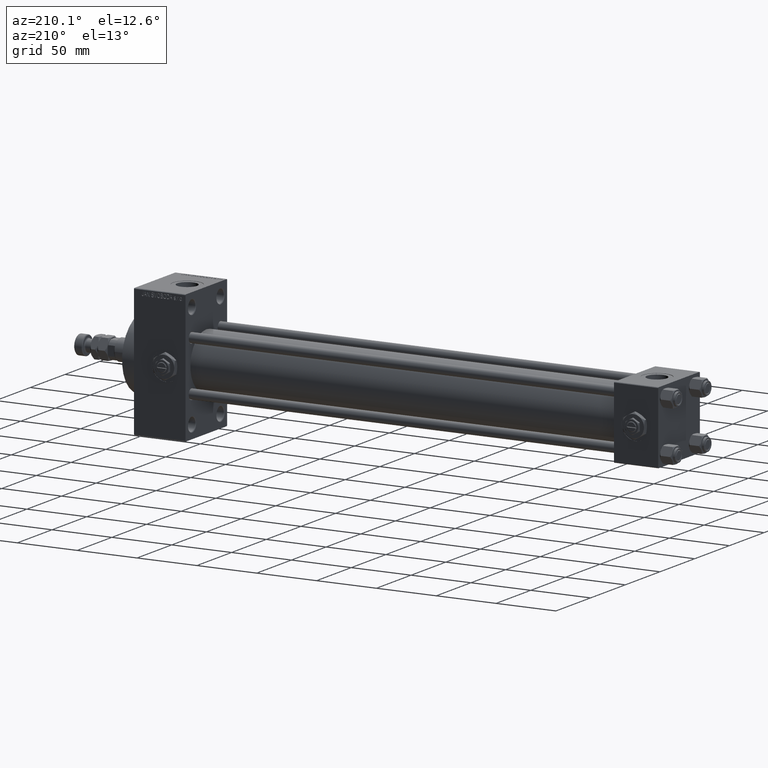
[diagram: clean part render]
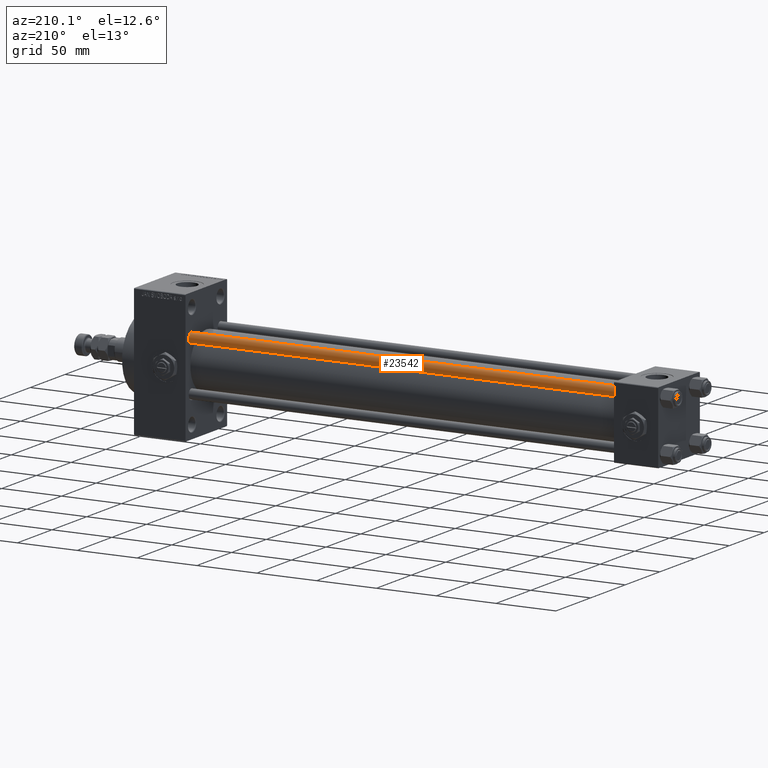
[diagram: same view with one face highlighted and labeled with its STEP entity id]
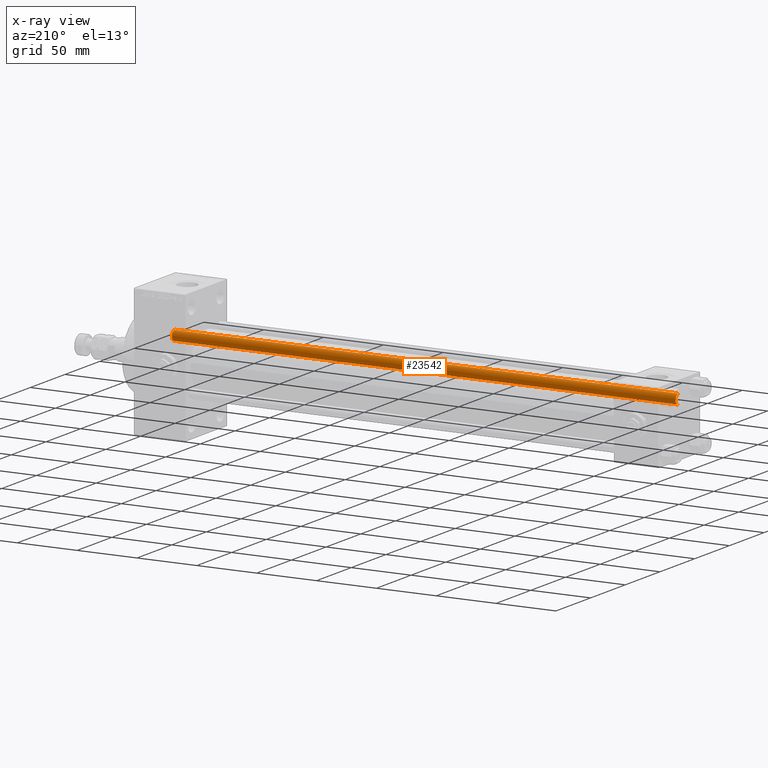
[diagram: x-ray of the same camera — body ghosted, the highlighted face saturated]
A machine part, auxiliary view. The second image highlights one B-rep face of the part: STEP entity #23542.
The next image is the same camera in x-ray: the body ghosted, the highlighted face saturated — about 0% of this face is hidden behind the body in this view.
In plain terms, the highlighted cylindrical surface (edge-blend (fillet) strip) has radius 4 mm, axis along (-1, -0, 0).
Its self-contained STEP definition (entity closure, byte-faithful):
#1456 = DIRECTION ( 'NONE',  ( 1.000000000000000000, 0.000000000000000000, 0.000000000000000000 ) ) ;
#5277 = DIRECTION ( 'NONE',  ( -0.000000000000000000, -0.000000000000000000, -1.000000000000000000 ) ) ;
#5956 = CARTESIAN_POINT ( 'NONE',  ( 4.000000000000000000, 4.898587196589412829E-16, 422.0000000000000000 ) ) ;
#6670 = VECTOR ( 'NONE', #21679, 1000.000000000000000 ) ;
#8148 = AXIS2_PLACEMENT_3D ( 'NONE', #16452, #16716, #12313 ) ;
#12154 = ORIENTED_EDGE ( 'NONE', *, *, #23777, .F. ) ;
#12313 = DIRECTION ( 'NONE',  ( -1.000000000000000000, 0.000000000000000000, 0.000000000000000000 ) ) ;
#12774 = EDGE_CURVE ( 'NONE', #33778, #19496, #25124, .T. ) ;
#13093 = CIRCLE ( 'NONE', #49251, 4.000000000000000000 ) ;
#14240 = DIRECTION ( 'NONE',  ( -0.000000000000000000, -0.000000000000000000, 1.000000000000000000 ) ) ;
#16452 = CARTESIAN_POINT ( 'NONE',  ( 0.000000000000000000, 0.000000000000000000, 422.0000000000000000 ) ) ;
#16716 = DIRECTION ( 'NONE',  ( -0.000000000000000000, -0.000000000000000000, -1.000000000000000000 ) ) ;
#17204 = DIRECTION ( 'NONE',  ( 0.000000000000000000, 0.000000000000000000, -1.000000000000000000 ) ) ;
#19496 = VERTEX_POINT ( 'NONE', #22893 ) ;
#19739 = ORIENTED_EDGE ( 'NONE', *, *, #28893, .T. ) ;
#21296 = CARTESIAN_POINT ( 'NONE',  ( 0.000000000000000000, 0.000000000000000000, 421.4999999999999432 ) ) ;
#21679 = DIRECTION ( 'NONE',  ( -0.000000000000000000, -0.000000000000000000, -1.000000000000000000 ) ) ;
#21974 = CARTESIAN_POINT ( 'NONE',  ( 4.000000000000000000, 4.898587196589412829E-16, 421.4999999999999432 ) ) ;
#22893 = CARTESIAN_POINT ( 'NONE',  ( -4.000000000000000000, 0.000000000000000000, 0.5000000000001114664 ) ) ;
#23542 = ADVANCED_FACE ( 'NONE', ( #31886 ), #47609, .T. ) ;
#23591 = EDGE_CURVE ( 'NONE', #45428, #41710, #13093, .T. ) ;
#23777 = EDGE_CURVE ( 'NONE', #45428, #19496, #24874, .T. ) ;
#24874 = LINE ( 'NONE', #28733, #27890 ) ;
#25124 = CIRCLE ( 'NONE', #48158, 4.000000000000000000 ) ;
#27534 = ORIENTED_EDGE ( 'NONE', *, *, #23591, .T. ) ;
#27890 = VECTOR ( 'NONE', #5277, 1000.000000000000000 ) ;
#28733 = CARTESIAN_POINT ( 'NONE',  ( -4.000000000000000000, 0.000000000000000000, 422.0000000000000000 ) ) ;
#28893 = EDGE_CURVE ( 'NONE', #41710, #33778, #41267, .T. ) ;
#28944 = CARTESIAN_POINT ( 'NONE',  ( -4.000000000000000000, 0.000000000000000000, 421.4999999999999432 ) ) ;
#31886 = FACE_OUTER_BOUND ( 'NONE', #47562, .T. ) ;
#33778 = VERTEX_POINT ( 'NONE', #38985 ) ;
#37181 = DIRECTION ( 'NONE',  ( 1.000000000000000000, 0.000000000000000000, 0.000000000000000000 ) ) ;
#38985 = CARTESIAN_POINT ( 'NONE',  ( 4.000000000000000000, 4.898587196589412829E-16, 0.5000000000001114664 ) ) ;
#41267 = LINE ( 'NONE', #5956, #6670 ) ;
#41710 = VERTEX_POINT ( 'NONE', #21974 ) ;
#41805 = CARTESIAN_POINT ( 'NONE',  ( 0.000000000000000000, 0.000000000000000000, 0.5000000000001114664 ) ) ;
#45428 = VERTEX_POINT ( 'NONE', #28944 ) ;
#47562 = EDGE_LOOP ( 'NONE', ( #27534, #19739, #49481, #12154 ) ) ;
#47609 = CYLINDRICAL_SURFACE ( 'NONE', #8148, 4.000000000000000000 ) ;
#48158 = AXIS2_PLACEMENT_3D ( 'NONE', #41805, #14240, #37181 ) ;
#49251 = AXIS2_PLACEMENT_3D ( 'NONE', #21296, #17204, #1456 ) ;
#49481 = ORIENTED_EDGE ( 'NONE', *, *, #12774, .T. ) ;